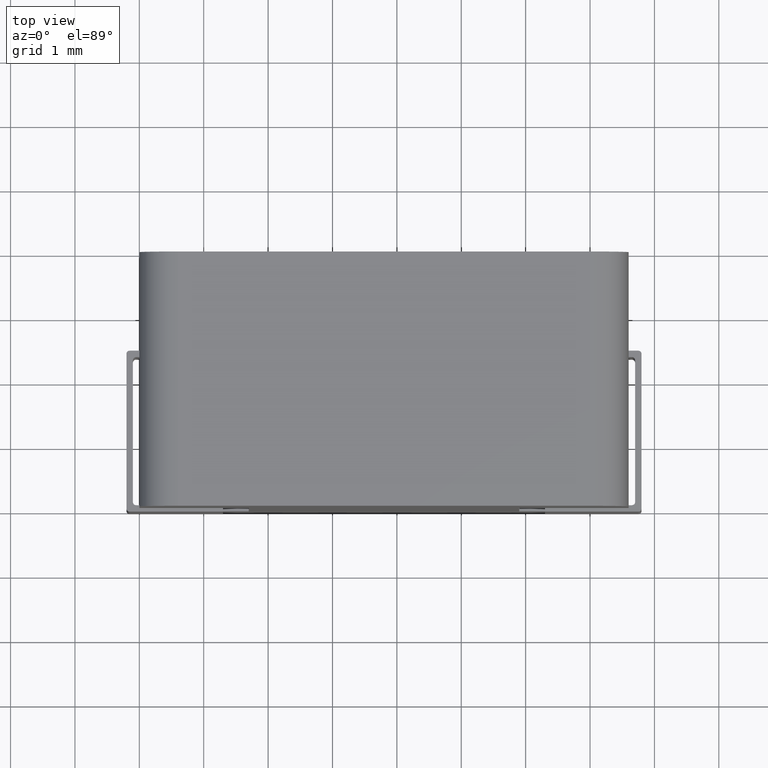
[diagram: clean part render]
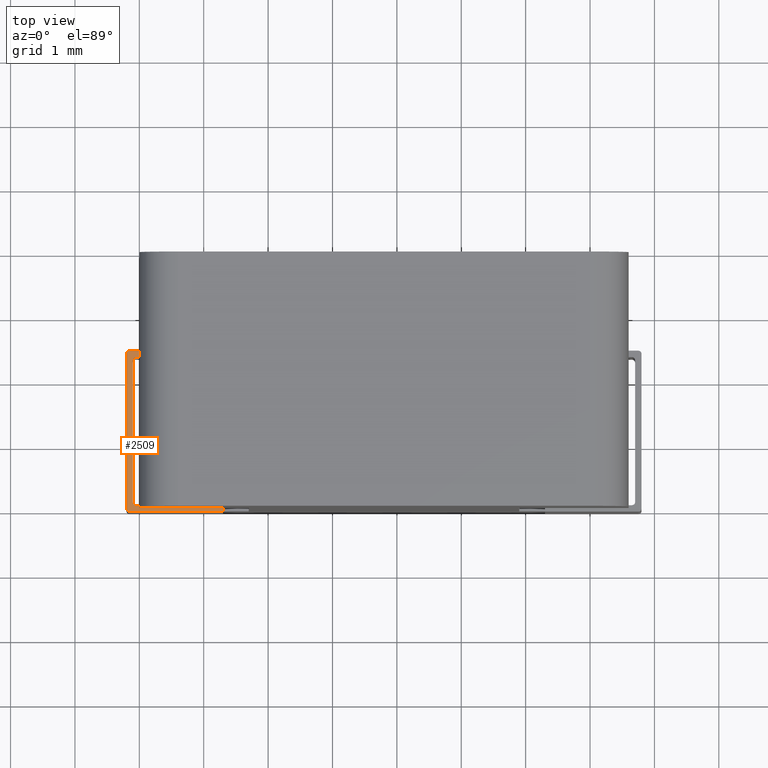
[diagram: same view with one face highlighted and labeled with its STEP entity id]
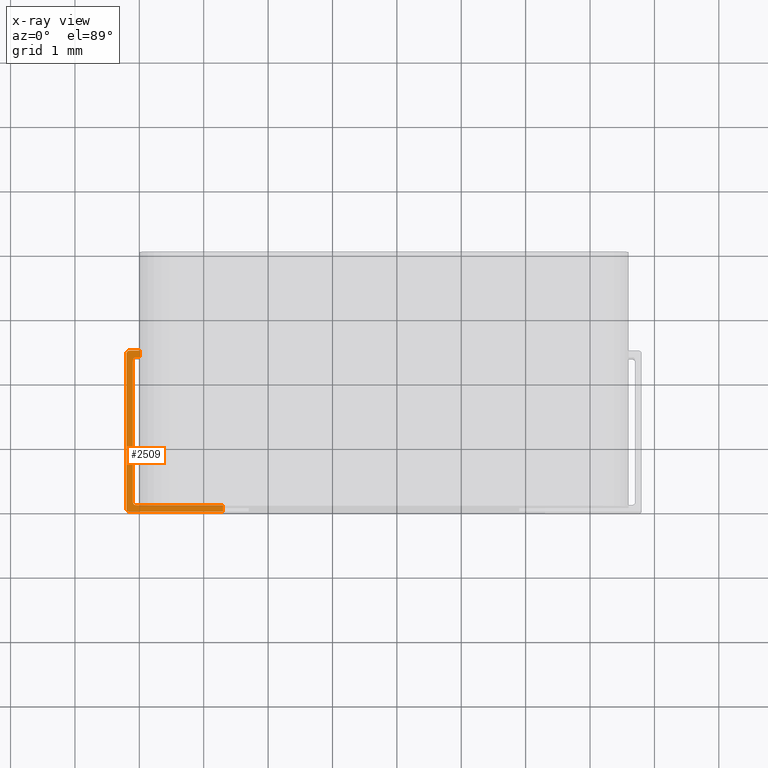
[diagram: x-ray of the same camera — body ghosted, the highlighted face saturated]
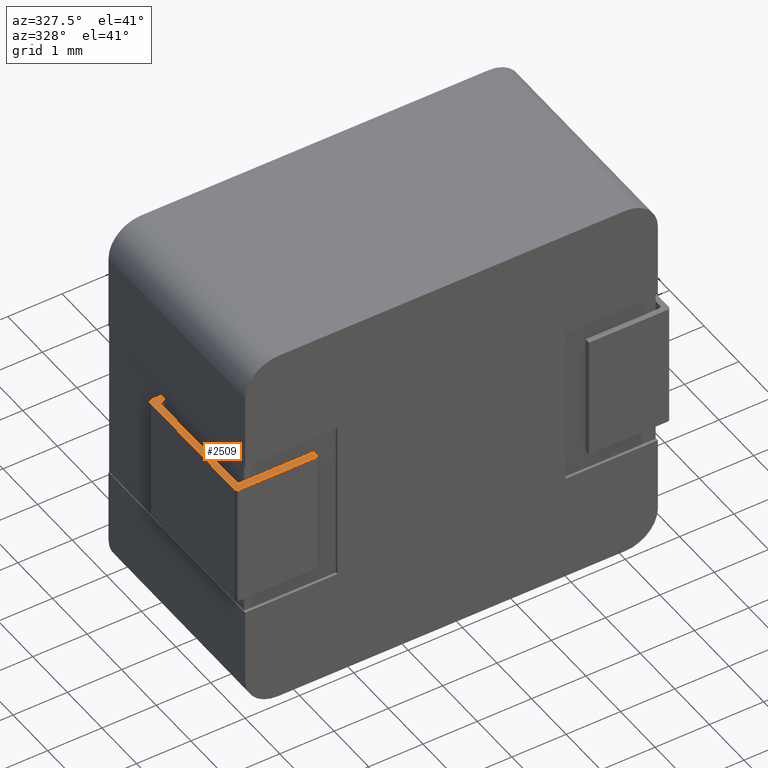
[diagram: same view with one face highlighted and labeled with its STEP entity id]
A machine part, top view. The second image highlights one B-rep face of the part: STEP entity #2509.
The next image is the same camera in x-ray: the body ghosted, the highlighted face saturated — about 10% of this face is hidden behind the body in this view.
A second angle (auxiliary view) of the same face is appended — the face is thin or edge-on in the first view.
In plain terms, the highlighted planar face has unit normal (0, -0, 1).
Its self-contained STEP definition (entity closure, byte-faithful):
#32 = LINE ( 'NONE', #2796, #999 ) ;
#35 = EDGE_CURVE ( 'NONE', #2789, #2264, #3887, .T. ) ;
#87 = VERTEX_POINT ( 'NONE', #1667 ) ;
#103 = PLANE ( 'NONE',  #596 ) ;
#128 = DIRECTION ( 'NONE',  ( 0.0000000000000000000, -0.0000000000000000000, 1.000000000000000000 ) ) ;
#283 = CARTESIAN_POINT ( 'NONE',  ( -0.04999999999999983600, 0.04999999999999999600, -2.350000000000000500 ) ) ;
#319 = VECTOR ( 'NONE', #685, 1000.000000000000000 ) ;
#343 = VERTEX_POINT ( 'NONE', #587 ) ;
#345 = DIRECTION ( 'NONE',  ( 1.000000000000000000, 0.0000000000000000000, 0.0000000000000000000 ) ) ;
#375 = CARTESIAN_POINT ( 'NONE',  ( -0.04999999999999983600, 0.09999999999999999200, -2.350000000000000500 ) ) ;
#382 = VERTEX_POINT ( 'NONE', #2811 ) ;
#392 = DIRECTION ( 'NONE',  ( 0.0000000000000000000, -0.0000000000000000000, 1.000000000000000000 ) ) ;
#473 = ORIENTED_EDGE ( 'NONE', *, *, #530, .T. ) ;
#476 = VERTEX_POINT ( 'NONE', #658 ) ;
#501 = VECTOR ( 'NONE', #3386, 1000.000000000000000 ) ;
#503 = CARTESIAN_POINT ( 'NONE',  ( 1.300000000000000300, -0.05000000000000000300, -2.350000000000000500 ) ) ;
#530 = EDGE_CURVE ( 'NONE', #3528, #476, #2018, .T. ) ;
#552 = EDGE_CURVE ( 'NONE', #382, #1524, #3493, .T. ) ;
#587 = CARTESIAN_POINT ( 'NONE',  ( -0.1000000000000000100, 2.299999999999999400, -2.350000000000000500 ) ) ;
#591 = CARTESIAN_POINT ( 'NONE',  ( -0.04999999999999999600, 2.350000000000000500, -2.350000000000000500 ) ) ;
#596 = AXIS2_PLACEMENT_3D ( 'NONE', #964, #603, #650 ) ;
#603 = DIRECTION ( 'NONE',  ( 0.0000000000000000000, -0.0000000000000000000, 1.000000000000000000 ) ) ;
#650 = DIRECTION ( 'NONE',  ( 1.000000000000000000, 0.0000000000000000000, -0.0000000000000000000 ) ) ;
#658 = CARTESIAN_POINT ( 'NONE',  ( -0.09999999999999982500, 0.09999999999999997800, -2.350000000000000500 ) ) ;
#685 = DIRECTION ( 'NONE',  ( 0.0000000000000000000, 1.000000000000000000, 0.0000000000000000000 ) ) ;
#733 = EDGE_CURVE ( 'NONE', #476, #343, #966, .T. ) ;
#799 = LINE ( 'NONE', #2023, #319 ) ;
#878 = VERTEX_POINT ( 'NONE', #591 ) ;
#964 = CARTESIAN_POINT ( 'NONE',  ( 0.0000000000000000000, 0.0000000000000000000, -2.350000000000000500 ) ) ;
#966 = LINE ( 'NONE', #3763, #3437 ) ;
#999 = VECTOR ( 'NONE', #2439, 1000.000000000000000 ) ;
#1035 = CARTESIAN_POINT ( 'NONE',  ( -0.1999999999999997100, -0.05000000000000000300, -2.350000000000000500 ) ) ;
#1036 = AXIS2_PLACEMENT_3D ( 'NONE', #2286, #128, #1398 ) ;
#1043 = ORIENTED_EDGE ( 'NONE', *, *, #4081, .T. ) ;
#1153 = LINE ( 'NONE', #503, #2915 ) ;
#1265 = ORIENTED_EDGE ( 'NONE', *, *, #733, .T. ) ;
#1290 = LINE ( 'NONE', #3871, #3647 ) ;
#1318 = DIRECTION ( 'NONE',  ( -0.0000000000000000000, 0.0000000000000000000, -1.000000000000000000 ) ) ;
#1383 = ORIENTED_EDGE ( 'NONE', *, *, #2393, .T. ) ;
#1393 = CARTESIAN_POINT ( 'NONE',  ( -0.09999999999999982500, 0.04999999999999999600, -2.350000000000000500 ) ) ;
#1398 = DIRECTION ( 'NONE',  ( 1.000000000000000000, 0.0000000000000000000, 0.0000000000000000000 ) ) ;
#1454 = LINE ( 'NONE', #3736, #501 ) ;
#1471 = CARTESIAN_POINT ( 'NONE',  ( -0.1999999999999997100, 0.0000000000000000000, -2.350000000000000500 ) ) ;
#1475 = DIRECTION ( 'NONE',  ( -7.660124044734541900E-017, 1.000000000000000000, 0.0000000000000000000 ) ) ;
#1524 = VERTEX_POINT ( 'NONE', #1693 ) ;
#1551 = DIRECTION ( 'NONE',  ( 1.000000000000000000, 0.0000000000000000000, 0.0000000000000000000 ) ) ;
#1608 = LINE ( 'NONE', #1393, #2853 ) ;
#1638 = DIRECTION ( 'NONE',  ( 1.000000000000000000, 0.0000000000000000000, 0.0000000000000000000 ) ) ;
#1667 = CARTESIAN_POINT ( 'NONE',  ( 0.01000000000000000000, 0.05000000000000000300, -2.350000000000000500 ) ) ;
#1689 = VERTEX_POINT ( 'NONE', #2623 ) ;
#1693 = CARTESIAN_POINT ( 'NONE',  ( -0.2000000000000001200, 2.399999999999999900, -2.350000000000000500 ) ) ;
#1705 = EDGE_CURVE ( 'NONE', #3017, #1689, #1153, .T. ) ;
#1755 = VECTOR ( 'NONE', #2323, 1000.000000000000000 ) ;
#1768 = AXIS2_PLACEMENT_3D ( 'NONE', #375, #1318, #1638 ) ;
#1804 = VECTOR ( 'NONE', #1551, 1000.000000000000000 ) ;
#1879 = EDGE_CURVE ( 'NONE', #1689, #87, #32, .T. ) ;
#1929 = EDGE_CURVE ( 'NONE', #343, #878, #3672, .T. ) ;
#1957 = EDGE_CURVE ( 'NONE', #878, #3645, #2246, .T. ) ;
#2018 = CIRCLE ( 'NONE', #1768, 0.05000000000000000300 ) ;
#2023 = CARTESIAN_POINT ( 'NONE',  ( 0.01000000000000000000, 2.350000000000000500, -2.350000000000000500 ) ) ;
#2150 = ORIENTED_EDGE ( 'NONE', *, *, #1879, .T. ) ;
#2165 = ORIENTED_EDGE ( 'NONE', *, *, #552, .T. ) ;
#2221 = CARTESIAN_POINT ( 'NONE',  ( -0.04999999999999999600, 2.300000000000000300, -2.350000000000000500 ) ) ;
#2246 = LINE ( 'NONE', #4118, #1804 ) ;
#2264 = VERTEX_POINT ( 'NONE', #3608 ) ;
#2271 = ORIENTED_EDGE ( 'NONE', *, *, #1957, .T. ) ;
#2286 = CARTESIAN_POINT ( 'NONE',  ( -0.1499999999999997200, 0.0000000000000000000, -2.350000000000000500 ) ) ;
#2305 = VERTEX_POINT ( 'NONE', #2317 ) ;
#2317 = CARTESIAN_POINT ( 'NONE',  ( 0.01000000000000000000, 2.449999999999999700, -2.350000000000000500 ) ) ;
#2323 = DIRECTION ( 'NONE',  ( 1.000000000000000000, 0.0000000000000000000, 0.0000000000000000000 ) ) ;
#2393 = EDGE_CURVE ( 'NONE', #1524, #2789, #1454, .T. ) ;
#2415 = ORIENTED_EDGE ( 'NONE', *, *, #1705, .T. ) ;
#2439 = DIRECTION ( 'NONE',  ( -1.000000000000000000, -4.840188270024572900E-018, -0.0000000000000000000 ) ) ;
#2509 = ADVANCED_FACE ( 'NONE', ( #3760 ), #103, .T. ) ;
#2592 = DIRECTION ( 'NONE',  ( 1.000000000000000000, 0.0000000000000000000, 0.0000000000000000000 ) ) ;
#2623 = CARTESIAN_POINT ( 'NONE',  ( 1.300000000000000300, 0.05000000000000000300, -2.350000000000000500 ) ) ;
#2722 = DIRECTION ( 'NONE',  ( 0.0000000000000000000, 1.000000000000000000, 0.0000000000000000000 ) ) ;
#2789 = VERTEX_POINT ( 'NONE', #1471 ) ;
#2796 = CARTESIAN_POINT ( 'NONE',  ( -0.09999999999999982500, 0.04999999999999999600, -2.350000000000000500 ) ) ;
#2811 = CARTESIAN_POINT ( 'NONE',  ( -0.1500000000000001300, 2.449999999999999700, -2.350000000000000500 ) ) ;
#2853 = VECTOR ( 'NONE', #2971, 1000.000000000000000 ) ;
#2873 = ORIENTED_EDGE ( 'NONE', *, *, #1929, .T. ) ;
#2890 = ORIENTED_EDGE ( 'NONE', *, *, #3123, .T. ) ;
#2915 = VECTOR ( 'NONE', #2722, 1000.000000000000000 ) ;
#2971 = DIRECTION ( 'NONE',  ( -1.000000000000000000, -4.840188270024572900E-018, -0.0000000000000000000 ) ) ;
#3017 = VERTEX_POINT ( 'NONE', #3120 ) ;
#3056 = AXIS2_PLACEMENT_3D ( 'NONE', #3902, #392, #2592 ) ;
#3075 = EDGE_LOOP ( 'NONE', ( #1383, #4074, #3529, #2415, #2150, #2890, #473, #1265, #2873, #2271, #3886, #1043, #2165 ) ) ;
#3098 = EDGE_CURVE ( 'NONE', #3645, #2305, #799, .T. ) ;
#3120 = CARTESIAN_POINT ( 'NONE',  ( 1.300000000000000300, -0.05000000000000000300, -2.350000000000000500 ) ) ;
#3123 = EDGE_CURVE ( 'NONE', #87, #3528, #1608, .T. ) ;
#3144 = EDGE_CURVE ( 'NONE', #2264, #3017, #3612, .T. ) ;
#3270 = DIRECTION ( 'NONE',  ( -1.000000000000000000, 0.0000000000000000000, 0.0000000000000000000 ) ) ;
#3386 = DIRECTION ( 'NONE',  ( 1.626303258728256700E-016, -1.000000000000000000, 0.0000000000000000000 ) ) ;
#3437 = VECTOR ( 'NONE', #1475, 1000.000000000000000 ) ;
#3493 = CIRCLE ( 'NONE', #3056, 0.04999999999999999600 ) ;
#3507 = DIRECTION ( 'NONE',  ( -0.0000000000000000000, 0.0000000000000000000, -1.000000000000000000 ) ) ;
#3528 = VERTEX_POINT ( 'NONE', #283 ) ;
#3529 = ORIENTED_EDGE ( 'NONE', *, *, #3144, .T. ) ;
#3604 = CARTESIAN_POINT ( 'NONE',  ( 0.01000000000000000000, 2.350000000000000500, -2.350000000000000500 ) ) ;
#3608 = CARTESIAN_POINT ( 'NONE',  ( -0.1499999999999997200, -0.05000000000000000300, -2.350000000000000500 ) ) ;
#3612 = LINE ( 'NONE', #1035, #1755 ) ;
#3645 = VERTEX_POINT ( 'NONE', #3604 ) ;
#3647 = VECTOR ( 'NONE', #3270, 1000.000000000000000 ) ;
#3672 = CIRCLE ( 'NONE', #3794, 0.05000000000000000300 ) ;
#3736 = CARTESIAN_POINT ( 'NONE',  ( -0.2000000000000001200, 2.449999999999999700, -2.350000000000000500 ) ) ;
#3760 = FACE_OUTER_BOUND ( 'NONE', #3075, .T. ) ;
#3763 = CARTESIAN_POINT ( 'NONE',  ( -0.09999999999999982500, 0.04999999999999999600, -2.350000000000000500 ) ) ;
#3794 = AXIS2_PLACEMENT_3D ( 'NONE', #2221, #3507, #345 ) ;
#3871 = CARTESIAN_POINT ( 'NONE',  ( 0.01000000000000000000, 2.449999999999999700, -2.350000000000000500 ) ) ;
#3886 = ORIENTED_EDGE ( 'NONE', *, *, #3098, .T. ) ;
#3887 = CIRCLE ( 'NONE', #1036, 0.04999999999999999600 ) ;
#3902 = CARTESIAN_POINT ( 'NONE',  ( -0.1500000000000001300, 2.399999999999999900, -2.350000000000000500 ) ) ;
#4074 = ORIENTED_EDGE ( 'NONE', *, *, #35, .T. ) ;
#4081 = EDGE_CURVE ( 'NONE', #2305, #382, #1290, .T. ) ;
#4118 = CARTESIAN_POINT ( 'NONE',  ( -0.1000000000000000100, 2.350000000000000500, -2.350000000000000500 ) ) ;